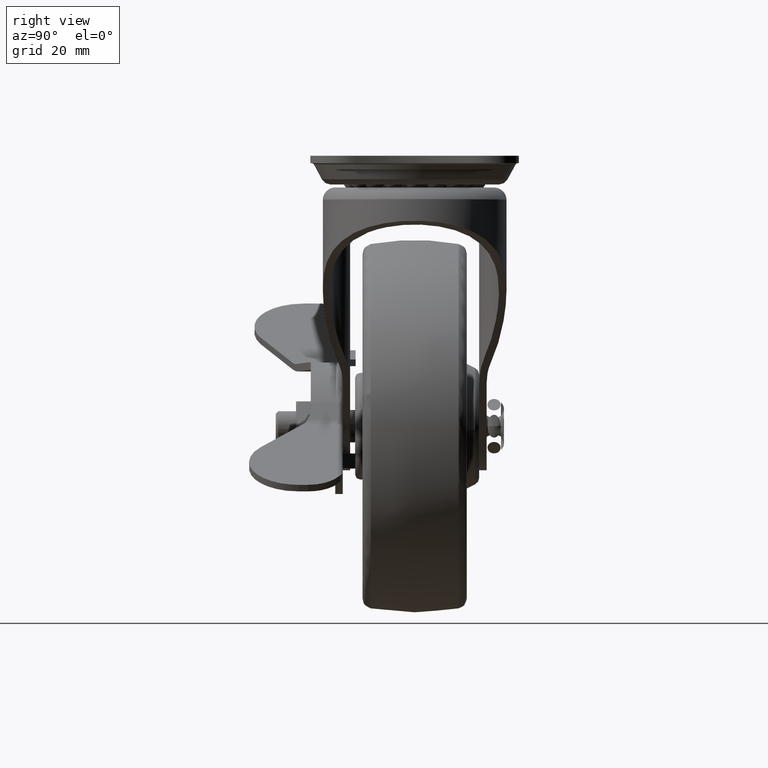
[diagram: clean part render]
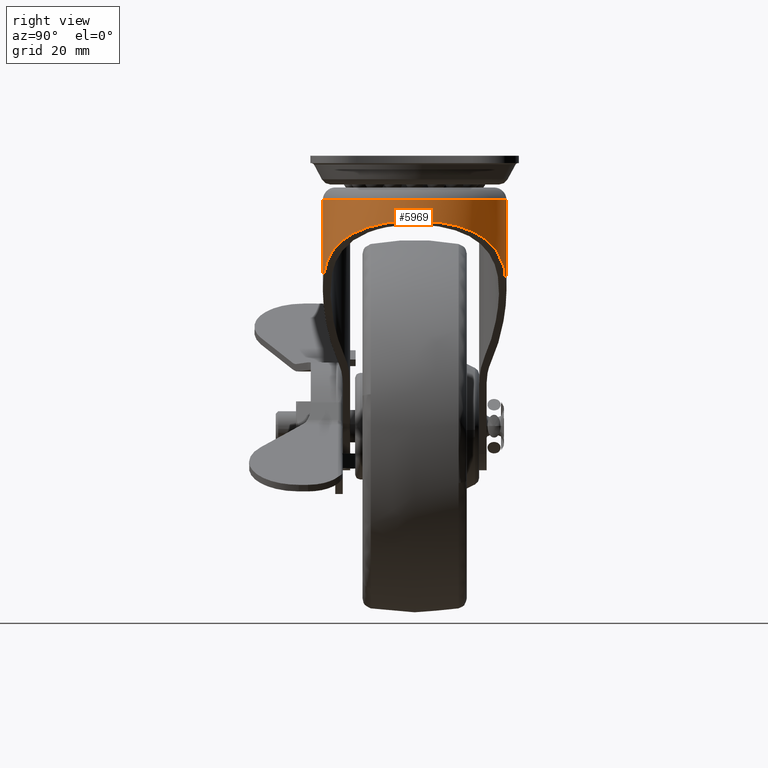
[diagram: same view with one face highlighted and labeled with its STEP entity id]
A machine part, right view. The second image highlights one B-rep face of the part: STEP entity #5969.
In plain terms, the highlighted face is a freeform B-spline surface patch.
Its self-contained STEP definition (entity closure, byte-faithful):
#4702=CARTESIAN_POINT('',(-0.143198866563532,-18.499436481496151,-7.398835037175340));
#4703=VERTEX_POINT('',#4702);
#4754=CARTESIAN_POINT('',(-0.143163841083398,-18.499436752585250,-7.399998800000080));
#4755=VERTEX_POINT('',#4754);
#4769=CARTESIAN_POINT('',(-0.143163841083398,-18.499436752585250,-7.399998800000080));
#4770=CARTESIAN_POINT('',(-0.143181353396489,-18.499436617060589,-7.399416932774479));
#4771=CARTESIAN_POINT('',(-0.143198866563532,-18.499436481496151,-7.398835037175340));
#4772=QUASI_UNIFORM_CURVE('',2,(#4769,#4770,#4771),.UNSPECIFIED.,.F.,.U.);
#4773=EDGE_CURVE('',#4755,#4703,#4772,.T.);
#5215=CARTESIAN_POINT('',(-0.143198866563532,18.499436481496151,-7.398835037175350));
#5216=VERTEX_POINT('',#5215);
#5269=CARTESIAN_POINT('',(-0.143198866563532,18.499436481496151,-7.398835037175350));
#5270=CARTESIAN_POINT('',(18.237886686337195,18.357341755331316,-7.249651231502088));
#5271=CARTESIAN_POINT('',(18.237886686337180,2.265520E-015,-7.249651231502083));
#5272=CARTESIAN_POINT('',(18.237886686337177,-18.357341755331301,-7.249651231502078));
#5273=CARTESIAN_POINT('',(-0.143198866563532,-18.499436481496151,-7.398835037175340));
#5281=(BOUNDED_CURVE()B_SPLINE_CURVE(2,(#5269,#5270,#5271,#5272,#5273),.UNSPECIFIED.,.F.,.U.)B_SPLINE_CURVE_WITH_KNOTS((3,2,3),(0.0,0.500000000000000,1.0),.UNSPECIFIED.)CURVE()GEOMETRIC_REPRESENTATION_ITEM()RATIONAL_B_SPLINE_CURVE((1.0,0.709838180458390,1.0,0.709838180458390,1.0))REPRESENTATION_ITEM(''));
#5282=EDGE_CURVE('',#5216,#4703,#5281,.T.);
#5369=CARTESIAN_POINT('',(-0.143163841083410,18.499436752585250,-7.399998799999680));
#5370=VERTEX_POINT('',#5369);
#5371=CARTESIAN_POINT('',(-0.143198866563532,18.499436481496151,-7.398835037175350));
#5372=CARTESIAN_POINT('',(-0.143181353597535,18.499436617059029,-7.399416926094513));
#5373=CARTESIAN_POINT('',(-0.143163841083410,18.499436752585250,-7.399998799999680));
#5374=QUASI_UNIFORM_CURVE('',2,(#5371,#5372,#5373),.UNSPECIFIED.,.F.,.U.);
#5375=EDGE_CURVE('',#5216,#5370,#5374,.T.);
#5796=CARTESIAN_POINT('',(0.311370750203310,18.493647136100680,-25.377491419128749));
#5797=CARTESIAN_POINT('',(-0.796557857794802,18.493647136100680,-6.988047576086293));
#5798=CARTESIAN_POINT('',(19.764335043418814,19.003964602547942,-24.205487750351502));
#5799=CARTESIAN_POINT('',(18.656406435420703,19.003964602547942,-5.816043907309030));
#5800=CARTESIAN_POINT('',(19.254941246148491,-0.484273193434138,-24.236177746500900));
#5801=CARTESIAN_POINT('',(18.147012638150379,-0.484273193434138,-5.846733903458429));
#5802=CARTESIAN_POINT('',(18.745547448878177,-19.972510989416218,-24.266867742650305));
#5803=CARTESIAN_POINT('',(17.637618840880066,-19.972510989416232,-5.877423899607830));
#5804=CARTESIAN_POINT('',(-0.654097621368591,-18.442957334778288,-25.435659030836430));
#5805=CARTESIAN_POINT('',(-1.762026229366709,-18.442957334778288,-7.046215187793950));
#5813=(BOUNDED_SURFACE()B_SPLINE_SURFACE(1,2,((#5796,#5798,#5800,#5802,#5804),(#5797,#5799,#5801,#5803,#5805)),.UNSPECIFIED.,.F.,.F.,.U.)B_SPLINE_SURFACE_WITH_KNOTS((2,2),(3,2,3),(0.0,18.422788894649841),(0.0,31.792886046624449,63.585772093248892),.UNSPECIFIED.)GEOMETRIC_REPRESENTATION_ITEM()RATIONAL_B_SPLINE_SURFACE(((1.0,0.688354575693754,1.0,0.688354575693754,1.0),(1.0,0.688354575693754,1.0,0.688354575693754,1.0)))REPRESENTATION_ITEM('')SURFACE());
#5814=ORIENTED_EDGE('',*,*,#5375,.F.);
#5815=ORIENTED_EDGE('',*,*,#5282,.T.);
#5816=ORIENTED_EDGE('',*,*,#4773,.F.);
#5817=CARTESIAN_POINT('',(1.005923E-012,-18.499986619467698,-12.156786014966260));
#5818=VERTEX_POINT('',#5817);
#5819=CARTESIAN_POINT('',(1.005923E-012,-18.499986619467698,-12.156786014966260));
#5820=CARTESIAN_POINT('',(-0.071582992255914,-18.499988661767244,-9.778356798499587));
#5821=CARTESIAN_POINT('',(-0.143163841083398,-18.499436752585250,-7.399998800000080));
#5829=(BOUNDED_CURVE()B_SPLINE_CURVE(2,(#5819,#5820,#5821),.UNSPECIFIED.,.F.,.U.)CURVE()GEOMETRIC_REPRESENTATION_ITEM()QUASI_UNIFORM_CURVE()RATIONAL_B_SPLINE_CURVE((1.0,0.999992514114235,1.0))REPRESENTATION_ITEM(''));
#5830=EDGE_CURVE('',#5818,#4755,#5829,.T.);
#5831=ORIENTED_EDGE('',*,*,#5830,.F.);
#5832=CARTESIAN_POINT('',(0.768403854341045,-18.499994788543699,-24.910784265535700));
#5833=VERTEX_POINT('',#5832);
#5834=CARTESIAN_POINT('',(0.768403854341045,-18.499994788543699,-24.910784265535700));
#5835=CARTESIAN_POINT('',(1.005923E-012,-18.499986619467698,-12.156786014966260));
#5836=QUASI_UNIFORM_CURVE('',1,(#5834,#5835),.UNSPECIFIED.,.F.,.U.);
#5837=EDGE_CURVE('',#5833,#5818,#5836,.T.);
#5838=ORIENTED_EDGE('',*,*,#5837,.F.);
#5839=CARTESIAN_POINT('',(0.768403854341056,18.499986619467698,-24.910784265535700));
#5840=VERTEX_POINT('',#5839);
#5841=CARTESIAN_POINT('',(0.768403854341056,18.499986619467698,-24.910784265535700));
#5842=CARTESIAN_POINT('',(1.220015993987259,18.499986619467698,-24.417204972549762));
#5843=CARTESIAN_POINT('',(1.681097613605426,18.481315573699010,-23.929844167573059));
#5844=CARTESIAN_POINT('',(2.387334927696651,18.421705771841690,-23.208153712703790));
#5845=CARTESIAN_POINT('',(2.625184333189545,18.396559888000489,-22.969148871256341));
#5846=CARTESIAN_POINT('',(2.985676878484830,18.350383847547729,-22.612983844150929));
#5847=CARTESIAN_POINT('',(3.106291169983440,18.333600904847039,-22.494821940703169));
#5848=CARTESIAN_POINT('',(3.347796731042962,18.297285589823630,-22.260208085345361));
#5849=CARTESIAN_POINT('',(3.468779267398730,18.277741740043830,-22.143665808130731));
#5850=CARTESIAN_POINT('',(4.074790490875026,18.172975699702711,-21.564761771659480));
#5851=CARTESIAN_POINT('',(4.563120668775748,18.066645676467409,-21.113817050030089));
#5852=CARTESIAN_POINT('',(5.545451970862877,17.805494482447511,-20.235956905626299));
#5853=CARTESIAN_POINT('',(6.039455930773332,17.650683653116339,-19.809041006991169));
#5854=CARTESIAN_POINT('',(7.031573873791867,17.288139765381761,-18.979044914356720));
#5855=CARTESIAN_POINT('',(7.529692128970696,17.080423173774541,-18.575963683058092));
#5856=CARTESIAN_POINT('',(8.153747323710991,16.784070235126212,-18.086986004542119));
#5857=CARTESIAN_POINT('',(8.278627805890062,16.722960143845320,-17.989934594625019));
#5858=CARTESIAN_POINT('',(8.528494418228771,16.596951634067040,-17.797321308110739));
#5859=CARTESIAN_POINT('',(8.653476999257467,16.532047689593380,-17.701765104686011));
#5860=CARTESIAN_POINT('',(9.026376621830284,16.332672755113439,-17.418949539193900));
#5861=CARTESIAN_POINT('',(9.272962788169211,16.193186111530380,-17.234987071521111));
#5862=CARTESIAN_POINT('',(10.006195487993750,15.754741813585881,-16.696448909763721));
#5863=CARTESIAN_POINT('',(10.486332942968900,15.435833623549369,-16.355208145391661));
#5864=CARTESIAN_POINT('',(11.426311615063890,14.742596084417020,-15.706535170895471));
#5865=CARTESIAN_POINT('',(11.886161361944220,14.368278985550370,-15.399101394530231));
#5866=CARTESIAN_POINT('',(12.782014958601160,13.560817765399310,-14.816756764368121));
#5867=CARTESIAN_POINT('',(13.218032695989841,13.127695166691320,-14.541841554236511));
#5868=CARTESIAN_POINT('',(13.745333835996661,12.546327437205390,-14.218070030866340));
#5869=CARTESIAN_POINT('',(13.850094437153331,12.427827100643650,-14.154196686509181));
#5870=CARTESIAN_POINT('',(14.056656213318780,12.188003576145491,-14.029098625629000));
#5871=CARTESIAN_POINT('',(14.362005491897650,11.824138385000589,-13.845451458650739));
#5872=CARTESIAN_POINT('',(14.653805403228130,11.447955680846830,-13.673472968341640));
#5873=CARTESIAN_POINT('',(15.219056311555381,10.679254498304360,-13.344320639571880));
#5874=CARTESIAN_POINT('',(15.571467095967760,10.145046402078970,-13.144582844367060));
#5875=CARTESIAN_POINT('',(16.225003947950491,9.032683654774388,-12.781537003593900));
#5876=CARTESIAN_POINT('',(16.526145078846390,8.454539151106095,-12.618226240155961));
#5877=CARTESIAN_POINT('',(16.868055713368580,7.703226270566171,-12.435873965652361));
#5878=CARTESIAN_POINT('',(16.934707605800899,7.551528124279540,-12.400496406134771));
#5879=CARTESIAN_POINT('',(17.064469625876960,7.245214307503252,-12.331917511692380));
#5880=CARTESIAN_POINT('',(17.127672102285299,7.090360919240211,-12.298667851464099));
#5881=CARTESIAN_POINT('',(17.311158181895149,6.623072816267180,-12.202530989253960));
#5882=CARTESIAN_POINT('',(17.424921996516620,6.309021324413206,-12.143459874395800));
#5883=CARTESIAN_POINT('',(17.740810311336769,5.359442206487106,-11.980524514041401));
#5884=CARTESIAN_POINT('',(17.917600063874328,4.716513141224029,-11.890872021978399));
#5885=CARTESIAN_POINT('',(18.203391509093020,3.411147522932298,-11.747031505186261));
#5886=CARTESIAN_POINT('',(18.312401766466920,2.748712978666870,-11.692842938835859));
#5887=CARTESIAN_POINT('',(18.404752404292150,1.908150927552066,-11.647062698781580));
#5888=CARTESIAN_POINT('',(18.421020829433850,1.739410569216589,-11.639009781596510));
#5889=CARTESIAN_POINT('',(18.449089786428029,1.400657349839390,-11.625127086174651));
#5890=CARTESIAN_POINT('',(18.460900305476830,1.230381577282927,-11.619292378336400));
#5891=CARTESIAN_POINT('',(18.489368236652432,0.720768325881169,-11.605235620568770));
#5892=CARTESIAN_POINT('',(18.499151074974019,0.381991499112707,-11.600414650756750));
#5893=CARTESIAN_POINT('',(18.501504932638451,-0.631507494346996,-11.599253981527969));
#5894=CARTESIAN_POINT('',(18.467157958719181,-1.303407574144260,-11.616146440641019));
#5895=CARTESIAN_POINT('',(18.327821379369659,-2.639779464395301,-11.685182462172730));
#5896=CARTESIAN_POINT('',(18.222831579805032,-3.304251385312670,-11.737323009595260));
#5897=CARTESIAN_POINT('',(18.046640523504820,-4.130072967623396,-11.825912928802760));
#5898=CARTESIAN_POINT('',(18.009132356538039,-4.295064691866620,-11.844815625631300));
#5899=CARTESIAN_POINT('',(17.929629746062510,-4.624288058222793,-11.884999374174379));
#5900=CARTESIAN_POINT('',(17.887805611024572,-4.787822623444118,-11.906194386815910));
#5901=CARTESIAN_POINT('',(17.756228965275540,-5.275241862679961,-11.973086040304389));
#5902=CARTESIAN_POINT('',(17.660376758844009,-5.595944736166375,-12.022085509587050));
#5903=CARTESIAN_POINT('',(17.349154181496850,-6.545596465602862,-12.182419148987149));
#5904=CARTESIAN_POINT('',(17.110177118803328,-7.162124566495952,-12.307032176694280));
#5905=CARTESIAN_POINT('',(16.571562488897779,-8.362538342238800,-12.593755206117180));
#5906=CARTESIAN_POINT('',(16.271916969604550,-8.946421530463224,-12.755861785963150));
#5907=CARTESIAN_POINT('',(15.859755428978710,-9.655474473332264,-12.984369733490350));
#5908=CARTESIAN_POINT('',(15.775447587205811,-9.796209284454587,-13.031366100840440));
#5909=CARTESIAN_POINT('',(15.604190845138980,-10.073804639429779,-13.127394290943521));
#5910=CARTESIAN_POINT('',(15.517110707413250,-10.210894995183420,-13.176498625677420));
#5911=CARTESIAN_POINT('',(15.251632953076239,-10.617127206894070,-13.327108006871169));
#5912=CARTESIAN_POINT('',(15.069000882669430,-10.881233604613451,-13.431907258525881));
#5913=CARTESIAN_POINT('',(14.504993097089679,-11.653939703617310,-13.759771251833429));
#5914=CARTESIAN_POINT('',(14.107539897763001,-12.142969343257390,-13.996270588717531));
#5915=CARTESIAN_POINT('',(13.481769023038931,-12.838592234475190,-14.379654085526649));
#5916=CARTESIAN_POINT('',(13.268237705826980,-13.064134922190689,-14.512229028160130));
#5917=CARTESIAN_POINT('',(12.940779743172129,-13.393013240667170,-14.718552489165800));
#5918=CARTESIAN_POINT('',(12.830433146016230,-13.501066125774649,-14.788570979987281));
#5919=CARTESIAN_POINT('',(12.607388801942900,-13.714028731322680,-14.931150396458399));
#5920=CARTESIAN_POINT('',(12.494552192052531,-13.819063531127521,-15.003801595839089));
#5921=CARTESIAN_POINT('',(11.926271826500081,-14.334846328527430,-15.372457552408569));
#5922=CARTESIAN_POINT('',(11.460997051683970,-14.715419263670750,-15.683048427018599));
#5923=CARTESIAN_POINT('',(10.513140521277490,-15.417574728184389,-16.336287220055180));
#5924=CARTESIAN_POINT('',(10.030547899770101,-15.739138121621400,-16.678938153583200));
#5925=CARTESIAN_POINT('',(9.296081298097626,-16.179858417437821,-17.217832718177430));
#5926=CARTESIAN_POINT('',(9.049491182627850,-16.319817147946232,-17.401620382506952));
#5927=CARTESIAN_POINT('',(8.677218741275143,-16.519580434223460,-17.683671780919688));
#5928=CARTESIAN_POINT('',(8.552729824079675,-16.584471874694461,-17.778750744271921));
#5929=CARTESIAN_POINT('',(8.302997407073800,-16.710897431412420,-17.971057093335641));
#5930=CARTESIAN_POINT('',(8.177625773671080,-16.772491992202738,-18.068385047583391));
#5931=CARTESIAN_POINT('',(7.550584134872337,-17.071393054471940,-18.559204172936170));
#5932=CARTESIAN_POINT('',(7.050159049956308,-17.280777615226970,-18.963802786252021));
#5933=CARTESIAN_POINT('',(6.053603900476350,-17.646081955515989,-19.796908799421050));
#5934=CARTESIAN_POINT('',(5.557469449489298,-17.801984525088450,-20.225417277182011));
#5935=CARTESIAN_POINT('',(4.571059363339604,-18.064860180698041,-21.106526850710530));
#5936=CARTESIAN_POINT('',(4.080780829887910,-18.171822498961369,-21.559128444417901));
#5937=CARTESIAN_POINT('',(3.350783430343025,-18.298210887561179,-22.256339666643960));
#5938=CARTESIAN_POINT('',(3.107966279721616,-18.334694104839020,-22.492187827681679));
#5939=CARTESIAN_POINT('',(2.627600226904539,-18.396291960404429,-22.966736851126569));
#5940=CARTESIAN_POINT('',(2.389748774104736,-18.421477263932100,-23.205713332180920));
#5941=CARTESIAN_POINT('',(1.683109263179593,-18.481219347714180,-23.927736314696642));
#5942=CARTESIAN_POINT('',(1.221232674067950,-18.499994788543699,-24.415875229521820));
#5943=CARTESIAN_POINT('',(0.768403854341045,-18.499994788543699,-24.910784265535700));
#5944=B_SPLINE_CURVE_WITH_KNOTS('',3,(#5841,#5842,#5843,#5844,#5845,#5846,#5847,#5848,#5849,#5850,#5851,#5852,#5853,#5854,#5855,#5856,#5857,#5858,#5859,#5860,#5861,#5862,#5863,#5864,#5865,#5866,#5867,#5868,#5869,#5870,#5871,#5872,#5873,#5874,#5875,#5876,#5877,#5878,#5879,#5880,#5881,#5882,#5883,#5884,#5885,#5886,#5887,#5888,#5889,#5890,#5891,#5892,#5893,#5894,#5895,#5896,#5897,#5898,#5899,#5900,#5901,#5902,#5903,#5904,#5905,#5906,#5907,#5908,#5909,#5910,#5911,#5912,#5913,#5914,#5915,#5916,#5917,#5918,#5919,#5920,#5921,#5922,#5923,#5924,#5925,#5926,#5927,#5928,#5929,#5930,#5931,#5932,#5933,#5934,#5935,#5936,#5937,#5938,#5939,#5940,#5941,#5942,#5943),.UNSPECIFIED.,.F.,.U.,(4,2,2,2,2,2,2,2,2,2,2,2,2,2,2,1,2,2,2,2,2,2,2,2,2,2,2,2,2,2,2,2,2,2,2,2,2,2,2,2,2,2,2,2,2,2,2,2,2,2,2,4),(0.0,0.031250000000000,0.046875000000000,0.054687500000000,0.062500000000000,0.093750000000000,0.125000000000000,0.156250000000000,0.164062500000000,0.171875000000000,0.187500000000000,0.218750000000000,0.250000000000000,0.281250000000000,0.289062500000000,0.296875000000000,0.312500000000000,0.343750000000000,0.375000000000001,0.382812500000001,0.390625000000001,0.406250000000001,0.437500000000001,0.468750000000001,0.476562500000001,0.484375000000001,0.500000000000001,0.531250000000001,0.562500000000000,0.570312500000000,0.578125000000000,0.593750000000000,0.625000000000000,0.656250000000000,0.664062500000000,0.671875000000000,0.687500000000000,0.718750000000001,0.734375000000001,0.742187500000001,0.750000000000001,0.781250000000001,0.812500000000001,0.828125000000001,0.835937500000001,0.843750000000001,0.875000000000001,0.906250000000001,0.937500000000000,0.953125000000000,0.968750000000000,1.0),.UNSPECIFIED.);
#5945=EDGE_CURVE('',#5840,#5833,#5944,.T.);
#5946=ORIENTED_EDGE('',*,*,#5945,.F.);
#5947=CARTESIAN_POINT('',(1.001152E-012,18.499986619467698,-12.156786014966180));
#5948=VERTEX_POINT('',#5947);
#5949=CARTESIAN_POINT('',(0.768403854341056,18.499986619467698,-24.910784265535700));
#5950=CARTESIAN_POINT('',(1.001152E-012,18.499986619467698,-12.156786014966180));
#5951=QUASI_UNIFORM_CURVE('',1,(#5949,#5950),.UNSPECIFIED.,.F.,.U.);
#5952=EDGE_CURVE('',#5840,#5948,#5951,.T.);
#5953=ORIENTED_EDGE('',*,*,#5952,.T.);
#5954=CARTESIAN_POINT('',(-0.143163841083410,18.499436752585250,-7.399998799999680));
#5955=CARTESIAN_POINT('',(-0.071582992256126,18.499988661767244,-9.778356798492563));
#5956=CARTESIAN_POINT('',(1.001152E-012,18.499986619467698,-12.156786014966180));
#5964=(BOUNDED_CURVE()B_SPLINE_CURVE(2,(#5954,#5955,#5956),.UNSPECIFIED.,.F.,.U.)CURVE()GEOMETRIC_REPRESENTATION_ITEM()QUASI_UNIFORM_CURVE()RATIONAL_B_SPLINE_CURVE((1.0,0.999992514068278,1.0))REPRESENTATION_ITEM(''));
#5965=EDGE_CURVE('',#5370,#5948,#5964,.T.);
#5966=ORIENTED_EDGE('',*,*,#5965,.F.);
#5967=EDGE_LOOP('',(#5814,#5815,#5816,#5831,#5838,#5946,#5953,#5966));
#5968=FACE_OUTER_BOUND('',#5967,.T.);
#5969=ADVANCED_FACE('',(#5968),#5813,.T.);